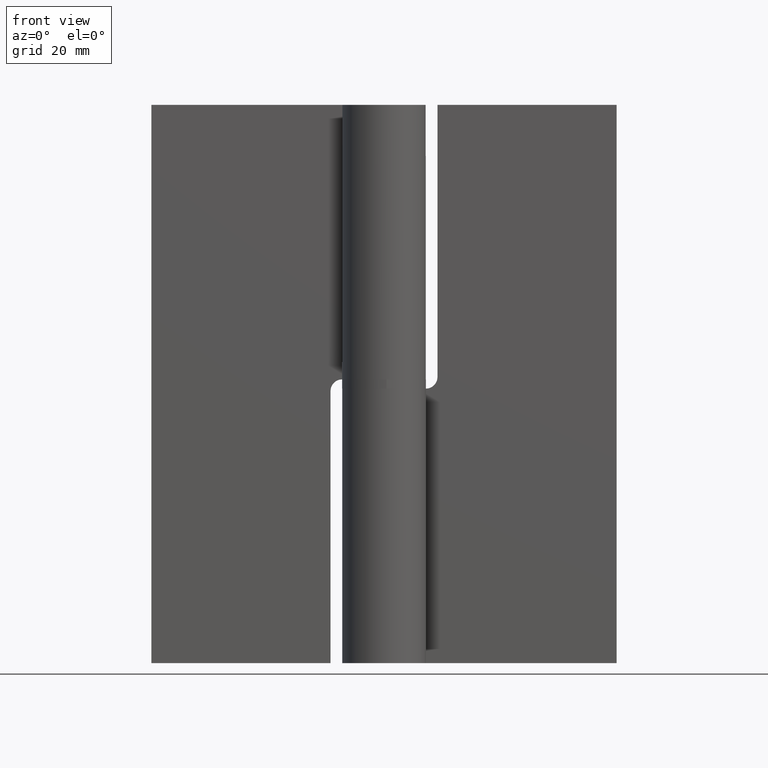
[diagram: clean part render]
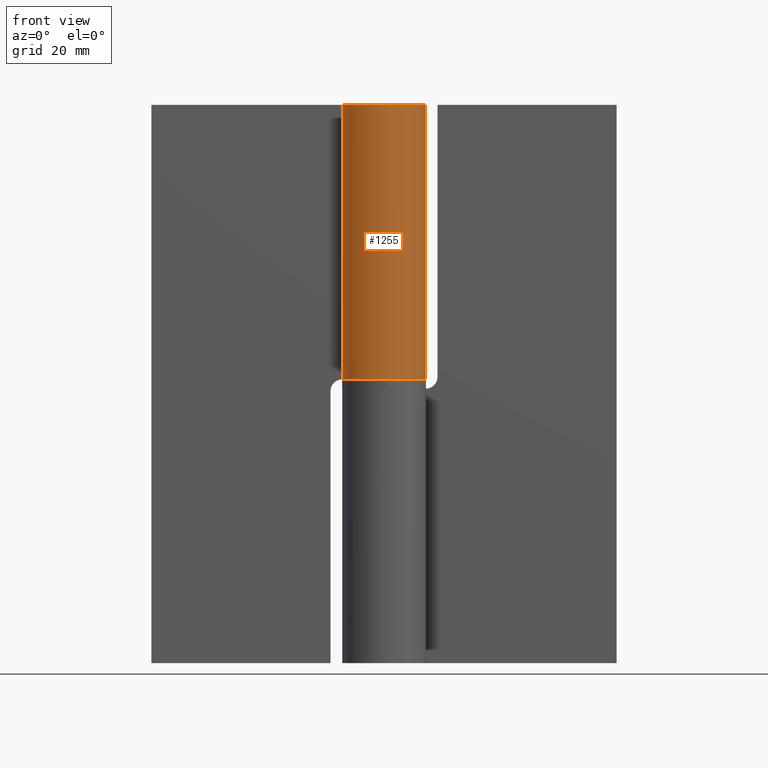
[diagram: same view with one face highlighted and labeled with its STEP entity id]
A machine part, front view. The second image highlights one B-rep face of the part: STEP entity #1255.
In plain terms, the highlighted face is a freeform B-spline surface patch.
Its self-contained STEP definition (entity closure, byte-faithful):
#980=CARTESIAN_POINT('',(-7.516481889820520,4.950000000000000,61.0));
#981=VERTEX_POINT('',#980);
#982=CARTESIAN_POINT('',(0.0,9.0,61.0));
#983=VERTEX_POINT('',#982);
#984=CARTESIAN_POINT('',(-7.516481889820526,4.950000000000004,61.0));
#985=CARTESIAN_POINT('',(-11.372849226319255,-0.905821261674363,61.0));
#986=CARTESIAN_POINT('',(-6.638175985501288,-6.077385917112225,61.0));
#987=CARTESIAN_POINT('',(-1.903502744683316,-11.248950572550092,61.0));
#988=CARTESIAN_POINT('',(4.269074841227311,-7.923067587746555,61.0));
#989=CARTESIAN_POINT('',(10.441652427137932,-4.597184602943023,61.0));
#990=CARTESIAN_POINT('',(8.726614701295084,2.201407698528488,61.0));
#991=CARTESIAN_POINT('',(7.011576975452236,9.0,61.0));
#992=CARTESIAN_POINT('',(0.0,9.0,61.0));
#1000=(BOUNDED_CURVE()B_SPLINE_CURVE(2,(#984,#985,#986,#987,#988,#989,#990,#991,#992),.UNSPECIFIED.,.F.,.U.)B_SPLINE_CURVE_WITH_KNOTS((3,2,2,2,3),(0.0,0.250000000000000,0.500000000000000,0.750000000000000,1.0),.UNSPECIFIED.)CURVE()GEOMETRIC_REPRESENTATION_ITEM()RATIONAL_B_SPLINE_CURVE((1.0,0.788860207955774,1.0,0.788860207955774,1.0,0.788860207955774,1.0,0.788860207955774,1.0))REPRESENTATION_ITEM(''));
#1001=EDGE_CURVE('',#981,#983,#1000,.T.);
#1087=CARTESIAN_POINT('',(-7.516481889820520,4.950000000000000,120.000015000000000));
#1088=VERTEX_POINT('',#1087);
#1094=CARTESIAN_POINT('',(0.0,9.0,120.000015000000000));
#1095=VERTEX_POINT('',#1094);
#1096=CARTESIAN_POINT('',(0.0,9.0,120.000015000000000));
#1097=CARTESIAN_POINT('',(7.011576975452233,9.0,120.000014999999980));
#1098=CARTESIAN_POINT('',(8.726614701295084,2.201407698528493,120.000015000000000));
#1099=CARTESIAN_POINT('',(10.441652427137935,-4.597184602943015,120.000014999999980));
#1100=CARTESIAN_POINT('',(4.269074841227313,-7.923067587746552,120.000015000000000));
#1101=CARTESIAN_POINT('',(-1.903502744683306,-11.248950572550088,120.000014999999980));
#1102=CARTESIAN_POINT('',(-6.638175985501282,-6.077385917112231,120.000015000000000));
#1103=CARTESIAN_POINT('',(-11.372849226319254,-0.905821261674372,120.000014999999980));
#1104=CARTESIAN_POINT('',(-7.516481889820531,4.949999999999997,120.000015000000000));
#1112=(BOUNDED_CURVE()B_SPLINE_CURVE(2,(#1096,#1097,#1098,#1099,#1100,#1101,#1102,#1103,#1104),.UNSPECIFIED.,.F.,.U.)B_SPLINE_CURVE_WITH_KNOTS((3,2,2,2,3),(0.0,0.250000000000000,0.500000000000000,0.750000000000000,1.0),.UNSPECIFIED.)CURVE()GEOMETRIC_REPRESENTATION_ITEM()RATIONAL_B_SPLINE_CURVE((1.0,0.788860207955774,1.0,0.788860207955774,1.0,0.788860207955774,1.0,0.788860207955774,1.0))REPRESENTATION_ITEM(''));
#1113=EDGE_CURVE('',#1095,#1088,#1112,.T.);
#1214=CARTESIAN_POINT('',(-7.516481889820520,4.950000000000000,61.0));
#1215=CARTESIAN_POINT('',(-7.516481889820520,4.950000000000000,120.000015000000000));
#1216=QUASI_UNIFORM_CURVE('',1,(#1214,#1215),.UNSPECIFIED.,.F.,.U.);
#1217=EDGE_CURVE('',#981,#1088,#1216,.T.);
#1223=CARTESIAN_POINT('',(-0.078538819485358,8.999657307577538,59.524999624999992));
#1224=CARTESIAN_POINT('',(-0.078538819485358,8.999657307577538,121.511890384374990));
#1225=CARTESIAN_POINT('',(11.101451958377293,9.097223608997838,59.524999624999992));
#1226=CARTESIAN_POINT('',(11.101451958377293,9.097223608997838,121.511890384375020));
#1227=CARTESIAN_POINT('',(8.808734269191723,-1.845589492483990,59.524999624999992));
#1228=CARTESIAN_POINT('',(8.808734269191723,-1.845589492483990,121.511890384374990));
#1229=CARTESIAN_POINT('',(6.516016580006151,-12.788402593965818,59.524999624999992));
#1230=CARTESIAN_POINT('',(6.516016580006151,-12.788402593965818,121.511890384375020));
#1231=CARTESIAN_POINT('',(-3.684530830734830,-8.211226008177126,59.524999624999992));
#1232=CARTESIAN_POINT('',(-3.684530830734830,-8.211226008177126,121.511890384374990));
#1233=CARTESIAN_POINT('',(-13.885078241475812,-3.634049422388435,59.524999624999992));
#1234=CARTESIAN_POINT('',(-13.885078241475812,-3.634049422388435,121.511890384375020));
#1235=CARTESIAN_POINT('',(-7.234711745554958,5.353405080762064,59.524999624999992));
#1236=CARTESIAN_POINT('',(-7.234711745554958,5.353405080762064,121.511890384374990));
#1244=(BOUNDED_SURFACE()B_SPLINE_SURFACE(1,2,((#1223,#1225,#1227,#1229,#1231,#1233,#1235),(#1224,#1226,#1228,#1230,#1232,#1234,#1236)),.UNSPECIFIED.,.F.,.F.,.U.)B_SPLINE_SURFACE_WITH_KNOTS((2,2),(3,2,2,3),(0.0,61.986890759375029),(0.0,17.235435887094710,34.470871774189433,51.706307661284143),.UNSPECIFIED.)GEOMETRIC_REPRESENTATION_ITEM()RATIONAL_B_SPLINE_SURFACE(((1.0,0.627057105746662,1.0,0.627057105746662,1.0,0.627057105746662,1.0),(1.0,0.627057105746662,1.0,0.627057105746662,1.0,0.627057105746662,1.0)))REPRESENTATION_ITEM('')SURFACE());
#1245=ORIENTED_EDGE('',*,*,#1217,.F.);
#1246=ORIENTED_EDGE('',*,*,#1001,.T.);
#1247=CARTESIAN_POINT('',(0.0,9.0,61.0));
#1248=CARTESIAN_POINT('',(0.0,9.0,120.000015000000000));
#1249=QUASI_UNIFORM_CURVE('',1,(#1247,#1248),.UNSPECIFIED.,.F.,.U.);
#1250=EDGE_CURVE('',#983,#1095,#1249,.T.);
#1251=ORIENTED_EDGE('',*,*,#1250,.T.);
#1252=ORIENTED_EDGE('',*,*,#1113,.T.);
#1253=EDGE_LOOP('',(#1245,#1246,#1251,#1252));
#1254=FACE_OUTER_BOUND('',#1253,.T.);
#1255=ADVANCED_FACE('',(#1254),#1244,.T.);